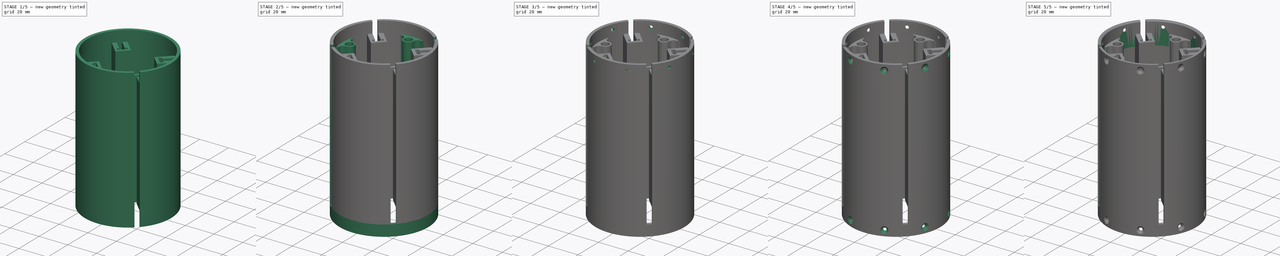
[diagram: build sequence overview — one tinted view per stage of 5, left to right]
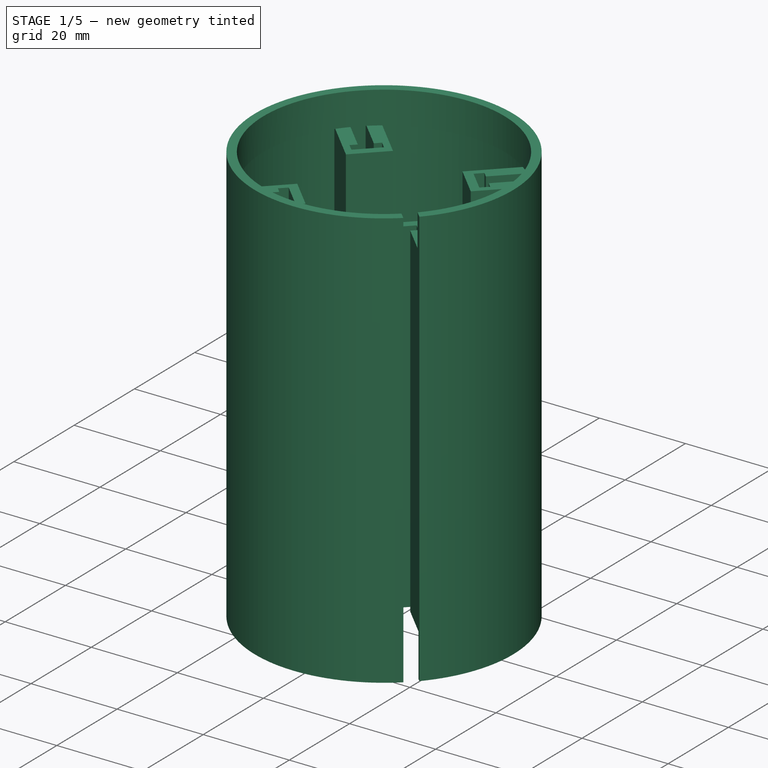
[diagram: stage 1 of 5 — iso view after this stage's code; geometry added in this stage tinted green]
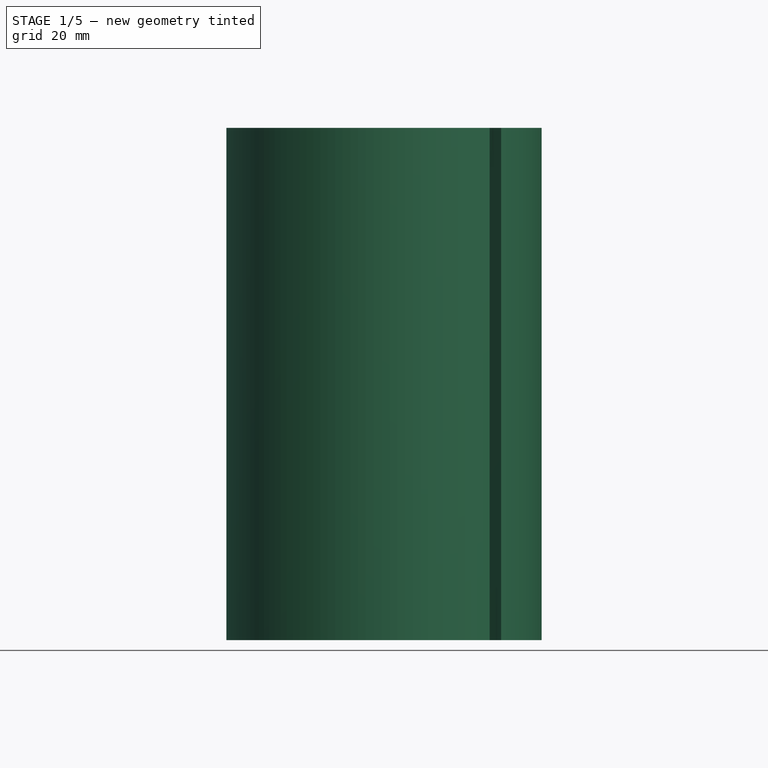
[diagram: stage 1 of 5 — front view after this stage's code; geometry added in this stage tinted green]
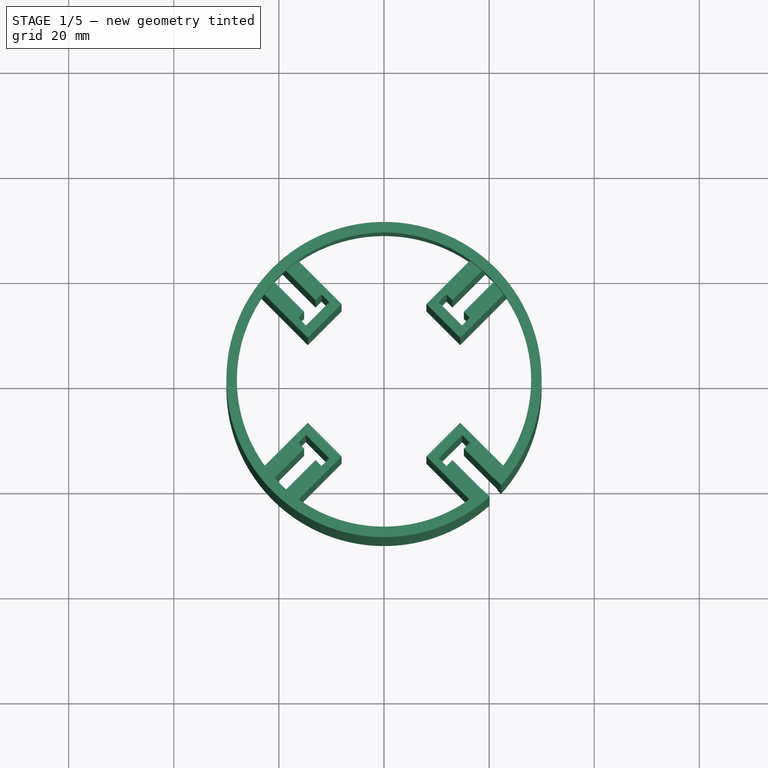
[diagram: stage 1 of 5 — top view after this stage's code; geometry added in this stage tinted green]
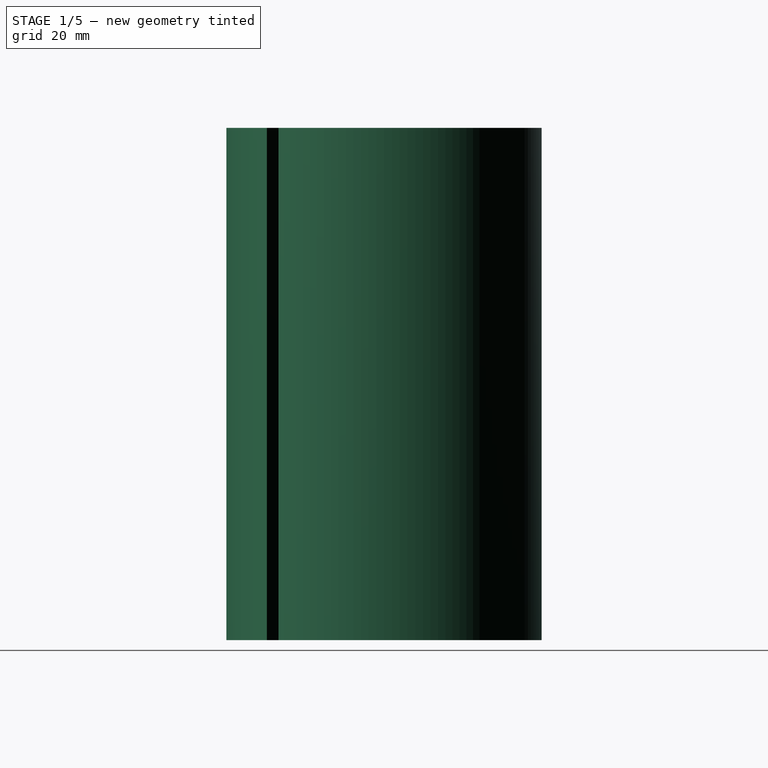
[diagram: stage 1 of 5 — right view after this stage's code; geometry added in this stage tinted green]
FCSTD DOCUMENT  (FreeCAD 1.0R39319 (Git))
Label: mid_fuselage
License: All rights reserved
objects: Sketcher::SketchObject×14, PartDesign::PolarPattern×9, PartDesign::Pad×7, PartDesign::Pocket×5, PartDesign::Plane×4, PartDesign::Chamfer×2, PartDesign::Body×1
note: 93 computed .brp shape members not serialized (recipe doc carries the construction recipe); baked Part::Feature solids carry a one-line shape summary decoded from their .brp

FEATURE [Sketcher::SketchObject] Sketch
  ArcFitTolerance = 1e-06
  AttachmentSupport = -> [XY_Plane]
  FullyConstrained = true
  MakeInternals = false
  MapMode = 5
  sketch-geometry (2):
    g0: Circle CenterX=0 CenterY=0 CenterZ=0 NormalX=0 NormalY=0 NormalZ=1 AngleXU=0 Radius=30
    g1: Circle CenterX=0 CenterY=0 CenterZ=0 NormalX=0 NormalY=0 NormalZ=1 AngleXU=0 Radius=29
  constraints (4):
    c: Diameter(g0) = 60
    c: Coincident(g0,g-1)
    c: Diameter(g1) = 58
    c: Coincident(g1,g0)
FEATURE [PartDesign::Pad] Pad  label="fusoliera"
  Direction = (0,0,1)
  Length = 90
  Length2 = 10
  Profile = -> Sketch
  ReferenceAxis = -> Sketch [N_Axis]
  Refine = true
  Suppressed = false
  Type = 0
FEATURE [Sketcher::SketchObject] Sketch002
  ArcFitTolerance = 1e-06
  AttachmentSupport = -> [Pad]
  ExternalGeometry = -> [Pad]
  FullyConstrained = true
  MakeInternals = false
  MapMode = 5
  Placement = pos=(0,0,90) rot=(0,0,1;0rad)
  sketch-geometry (13):
    g0: LineSegment [constr] StartX=0 StartY=0 StartZ=0 EndX=21.2132 EndY=21.2132 EndZ=0
    g1: LineSegment StartX=17.2594 StartY=23.6941 StartZ=0 EndX=19.3808 EndY=21.5728 EndZ=0
    g2: LineSegment StartX=23.6941 StartY=17.2594 StartZ=0 EndX=14.5017 EndY=8.06706 EndZ=0
    g3: LineSegment StartX=14.5017 StartY=8.06706 StartZ=0 EndX=8.06706 EndY=14.5017 EndZ=0
    g4: LineSegment StartX=8.06706 StartY=14.5017 StartZ=0 EndX=17.2594 EndY=23.6941 EndZ=0
    g5: LineSegment StartX=19.3808 StartY=21.5728 StartZ=0 EndX=13.0168 EndY=15.2088 EndZ=0
    g6: LineSegment StartX=13.0168 StartY=15.2088 StartZ=0 EndX=11.8854 EndY=16.3402 EndZ=0
    g7: LineSegment StartX=11.8854 StartY=16.3402 StartZ=0 EndX=10.4005 EndY=14.8553 EndZ=0
    g8: LineSegment StartX=10.4005 StartY=14.8553 StartZ=0 EndX=14.8553 EndY=10.4005 EndZ=0
    g9: LineSegment StartX=14.8553 StartY=10.4005 StartZ=0 EndX=16.3402 EndY=11.8854 EndZ=0
    g10: LineSegment StartX=16.3402 StartY=11.8854 StartZ=0 EndX=15.2088 EndY=13.0168 EndZ=0
    g11: LineSegment StartX=15.2088 StartY=13.0168 StartZ=0 EndX=21.5728 EndY=19.3808 EndZ=0
    g12: LineSegment StartX=21.5728 StartY=19.3808 StartZ=0 EndX=23.6941 EndY=17.2594 EndZ=0
  constraints (35):
    c: Coincident(g0,g-1)
    c: PointOnObject(g0,g-3)
    c: Angle(g-1,g0) = 0.785398
    c: Coincident(g2,g3)
    c: Coincident(g3,g4)
    c: Coincident(g4,g1)
    c: Parallel(g4,g0)
    c: Parallel(g4,g2)
    c: Symmetric(g1,g2,g0)
    c: Perpendicular(g2,g3)
    c: Distance(g2,g3) = 9.1
    c: Distance(g2,g2) = 13
    c: Coincident(g5,g6)
    c: Coincident(g6,g7)
    c: Coincident(g7,g8)
    c: Coincident(g8,g9)
    c: Coincident(g9,g10)
    c: Coincident(g10,g11)
    c: PointOnObject(g11,g-4)
    c: Parallel(g7,g9)
    c: Parallel(g4,g7)
    c: Parallel(g5,g0)
    c: Perpendicular(g0,g6)
    c: Symmetric(g5,g10,g0)
    c: Distance(g6,g7) = 2.1
    c: Symmetric(g6,g9,g0)
    c: Distance(g5,g6) = 1.6
    c: Perpendicular(g9,g8)
    c: Distance(g5,g11) = 3.1
    c: Distance(g10,g11) = 9
    c: Coincident(g1,g5)
    c: Coincident(g12,g11)
    c: Coincident(g12,g2)
    c: Symmetric(g11,g1,g0)
    c: Perpendicular(g1,g4)
FEATURE [PartDesign::Pad] Pad001  label="inserto_fins"
  BaseFeature = -> Pad
  Direction = (0,0,1)
  Length = 80
  Length2 = 10
  Profile = -> Sketch002
  ReferenceAxis = -> Sketch002 [N_Axis]
  Refine = true
  Reversed = true
  Suppressed = false
  Type = 0
FEATURE [Sketcher::SketchObject] Sketch003
  ArcFitTolerance = 1e-06
  AttachmentSupport = -> [Pad001]
  FullyConstrained = true
  MakeInternals = false
  MapMode = 5
  Placement = pos=(0,0,90) rot=(0,0,1;0rad)
  sketch-geometry (2):
    g0: Circle CenterX=0 CenterY=0 CenterZ=0 NormalX=0 NormalY=0 NormalZ=1 AngleXU=0 Radius=28
    g1: Circle CenterX=0 CenterY=0 CenterZ=0 NormalX=0 NormalY=0 NormalZ=1 AngleXU=0 Radius=30
  constraints (4):
    c: Diameter(g0) = 56
    c: Coincident(g0,g-1)
    c: Diameter(g1) = 60
    c: Coincident(g1,g0)
FEATURE [PartDesign::Pad] Pad002  label="rinforzo_inf"
  BaseFeature = -> Pad001
  Direction = (0,0,1)
  Length = 7.5
  Length2 = 10
  Profile = -> Sketch003
  ReferenceAxis = -> Sketch003 [N_Axis]
  Refine = true
  Suppressed = false
  Type = 0
FEATURE [PartDesign::PolarPattern] PolarPattern
  Angle = 360
  Axis = -> Sketch002 [N_Axis]
  BaseFeature = -> Pad002
  Mode = 0
  Occurrences = 4
  Offset = 120
  Originals = -> [Pad001]
  Refine = true
  Suppressed = false
  TransformMode = 0
FEATURE [Sketcher::SketchObject] Sketch005
  ArcFitTolerance = 1e-06
  AttachmentSupport = -> [PolarPattern]
  FullyConstrained = false
  MakeInternals = false
  MapMode = 5
  Placement = pos=(0,0,0) rot=(1,0,0;3.14159rad)
  sketch-geometry (10):
    g0: Circle CenterX=0 CenterY=23.4279 CenterZ=0 NormalX=0 NormalY=0 NormalZ=1 AngleXU=0 Radius=2.575
    g1: ArcOfCircle CenterX=0 CenterY=23.4279 CenterZ=0 NormalX=0 NormalY=0 NormalZ=1 AngleXU=0 Radius=3.5 StartAngle=3.14159 EndAngle=6.28319
    g2: ArcOfCircle CenterX=-6.25219 CenterY=23.4279 CenterZ=0 NormalX=0 NormalY=0 NormalZ=1 AngleXU=0 Radius=2.75219 StartAngle=0 EndAngle=1.83159
    g3: ArcOfCircle CenterX=6.25219 CenterY=23.4279 CenterZ=0 NormalX=0 NormalY=0 NormalZ=1 AngleXU=0 Radius=2.75219 StartAngle=1.31 EndAngle=3.14159
    g4: LineSegment [constr] StartX=0 StartY=23.4279 StartZ=0 EndX=-7.45629 EndY=23.4279 EndZ=0
    g5: LineSegment [constr] StartX=0 StartY=23.4279 StartZ=0 EndX=7.33716 EndY=23.4279 EndZ=0
    g6: LineSegment StartX=-6.96183 StartY=26.087 StartZ=0 EndX=-7.63779 EndY=28.6199 EndZ=0
    g7: LineSegment StartX=7.63001 StartY=28.5908 StartZ=0 EndX=6.96183 EndY=26.087 EndZ=0
    g8: LineSegment StartX=-7.63779 StartY=28.6199 StartZ=0 EndX=-1e-16 EndY=29.5069 EndZ=0
    g9: LineSegment StartX=-1e-16 StartY=29.5069 StartZ=0 EndX=7.63001 EndY=28.5908 EndZ=0
  constraints (23):
    c: Diameter(g0) = 5.15
    c: PointOnObject(g0,g-2)
    c: Diameter(g1) = 7
    c: Coincident(g1,g0)
    c: DistanceY(g-1,g0) = 23.4279
    c: Tangent(g2,g-3)
    c: Coincident(g4,g0)
    c: Horizontal(g4)
    c: Perpendicular(g2,g4)
    c: Coincident(g5,g0)
    c: Horizontal(g5)
    c: Perpendicular(g3,g5)
    c: Perpendicular(g3,g7)
    c: Perpendicular(g2,g6) = 4.71239
    c: Tangent(g2,g1) = 1.5708
    c: Tangent(g3,g1) = 1.5708
    c: Tangent(g3,g-3) = -1.5708
    c: Coincident(g3,g7)
    c: Perpendicular(g-3,g6)
    c: Coincident(g6,g8)
    c: PointOnObject(g8,g-2)
    c: Coincident(g8,g9)
    c: Coincident(g9,g7)
FEATURE [Sketcher::SketchObject] Sketch006
  ArcFitTolerance = 1e-06
  AttachmentSupport = -> [PolarPattern]
  ExternalGeometry = -> [PolarPattern]
  FullyConstrained = false
  MakeInternals = false
  MapMode = 5
  Placement = pos=(0,0,0) rot=(1,0,0;3.14159rad)
  sketch-geometry (5):
    g0: LineSegment [constr] StartX=0 StartY=0 StartZ=0 EndX=21.2132 EndY=21.2132 EndZ=0
    g1: LineSegment StartX=18.2749 StartY=20.4669 StartZ=0 EndX=20.6047 EndY=22.7967 EndZ=0
    g2: LineSegment StartX=20.6047 StartY=22.7967 StartZ=0 EndX=22.7967 EndY=20.6047 EndZ=0
    g3: LineSegment StartX=18.2749 StartY=20.4669 StartZ=0 EndX=20.4669 EndY=18.2749 EndZ=0
    g4: LineSegment StartX=20.4669 StartY=18.2749 StartZ=0 EndX=22.7967 EndY=20.6047 EndZ=0
  constraints (13):
    c: Coincident(g0,g-1)
    c: PointOnObject(g0,g-3)
    c: Angle(g-1,g0) = 0.785398
    c: PointOnObject(g1,g-4)
    c: Coincident(g1,g2)
    c: Coincident(g1,g3)
    c: PointOnObject(g3,g-8)
    c: Coincident(g3,g4)
    c: Coincident(g4,g2)
    c: Parallel(g-4,g1)
    c: Parallel(g4,g-8)
    c: Perpendicular(g2,g1)
    c: Perpendicular(g4,g3)
FEATURE [PartDesign::Pocket] Pocket  label="inserto_fins_2"
  BaseFeature = -> PolarPattern
  Direction = (0,0,1)
  Length = 97.5
  Length2 = 5
  Profile = -> Sketch006
  ReferenceAxis = -> Sketch006 [N_Axis]
  Refine = true
  Suppressed = false
  Type = 0
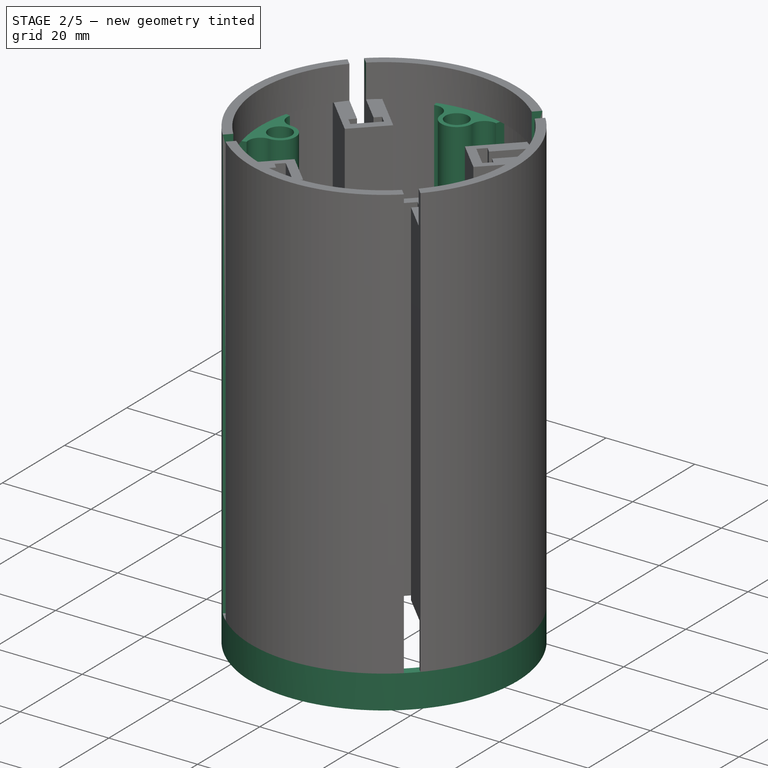
[diagram: stage 2 of 5 — iso view after this stage's code; geometry added in this stage tinted green]
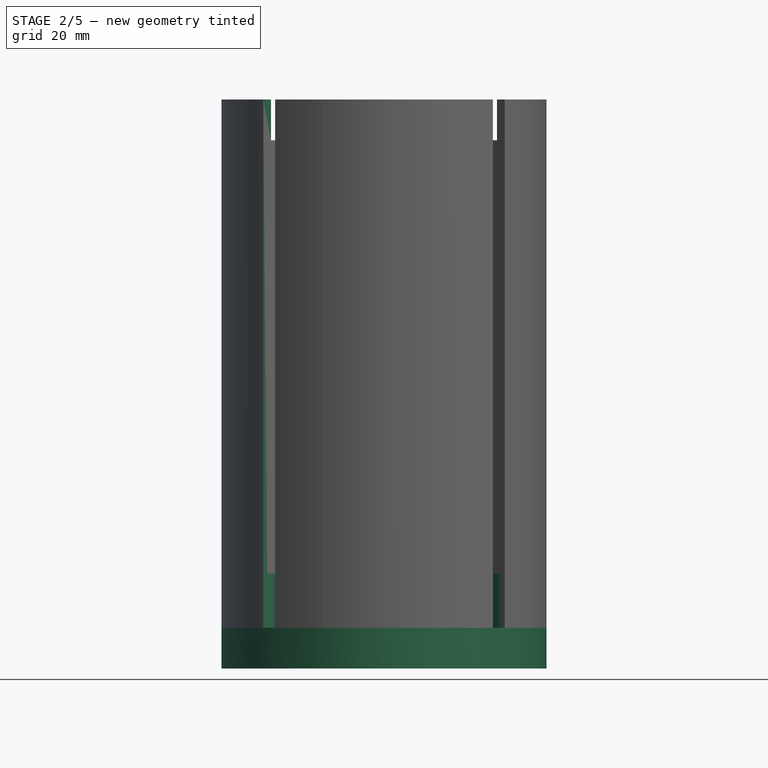
[diagram: stage 2 of 5 — front view after this stage's code; geometry added in this stage tinted green]
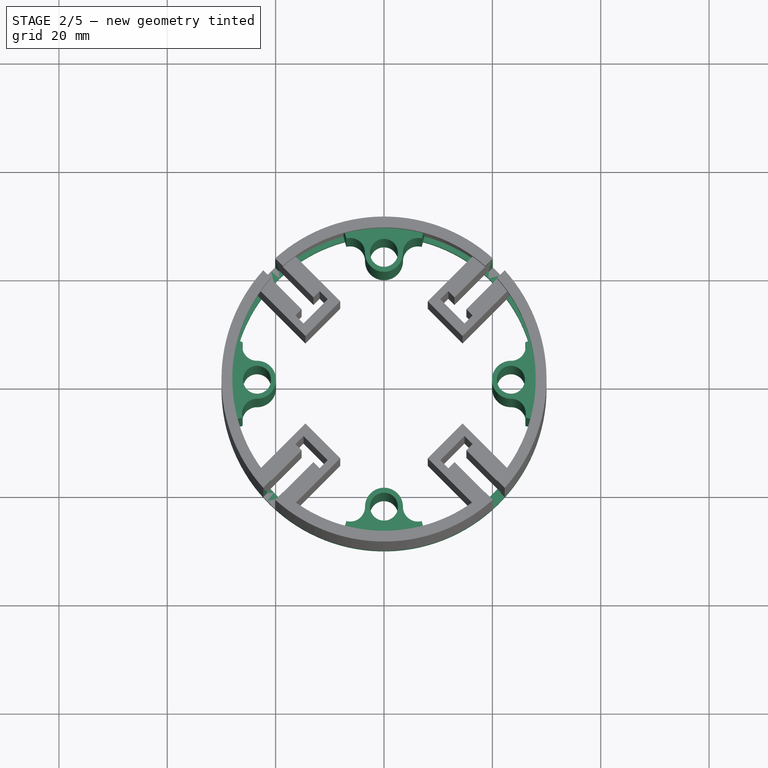
[diagram: stage 2 of 5 — top view after this stage's code; geometry added in this stage tinted green]
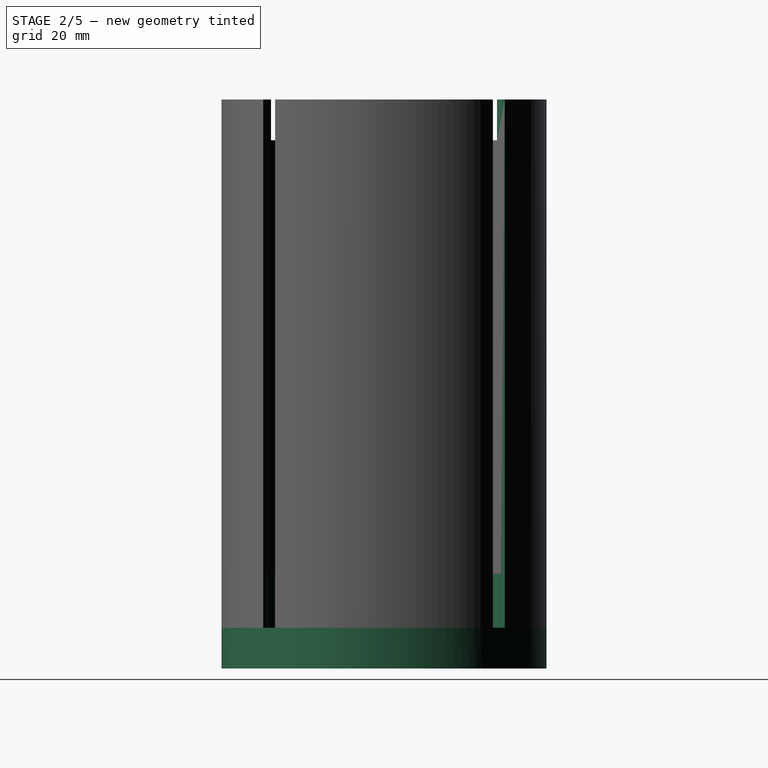
[diagram: stage 2 of 5 — right view after this stage's code; geometry added in this stage tinted green]
FEATURE [PartDesign::PolarPattern] PolarPattern001
  Angle = 360
  Axis = -> Sketch006 [N_Axis]
  BaseFeature = -> Pocket
  Mode = 0
  Occurrences = 4
  Offset = 120
  Originals = -> [Pocket]
  Refine = true
  Suppressed = false
  TransformMode = 0
FEATURE [PartDesign::Pad] Pad003  label="inserto_tondo"
  BaseFeature = -> PolarPattern001
  Direction = (0,0,-1)
  Length = 90
  Length2 = 10
  Profile = -> Sketch005
  ReferenceAxis = -> Sketch005 [N_Axis]
  Refine = true
  Reversed = true
  Suppressed = false
  Type = 0
FEATURE [PartDesign::PolarPattern] PolarPattern002
  Angle = 360
  Axis = -> Sketch005 [N_Axis]
  BaseFeature = -> Pad003
  Mode = 0
  Occurrences = 4
  Offset = 120
  Originals = -> [Pad003]
  Refine = true
  Suppressed = false
  TransformMode = 0
FEATURE [Sketcher::SketchObject] Sketch007
  ArcFitTolerance = 1e-06
  AttachmentSupport = -> [PolarPattern002]
  ExternalGeometry = -> [PolarPattern002]
  FullyConstrained = true
  MakeInternals = false
  MapMode = 5
  Placement = pos=(0,0,0) rot=(1,0,0;3.14159rad)
  sketch-geometry (2):
    g0: Circle CenterX=0 CenterY=0 CenterZ=0 NormalX=0 NormalY=0 NormalZ=1 AngleXU=0 Radius=28
    g1: Circle CenterX=0 CenterY=0 CenterZ=0 NormalX=0 NormalY=0 NormalZ=1 AngleXU=0 Radius=30
  constraints (4):
    c: Coincident(g0,g-1)
    c: Diameter(g0) = 56
    c: Coincident(g1,g0)
    c: Tangent(g1,g-3)
FEATURE [PartDesign::Pad] Pad004  label="rinforzo_sup"
  BaseFeature = -> PolarPattern002
  Direction = (0,0,-1)
  Length = 7.5
  Length2 = 10
  Profile = -> Sketch007
  ReferenceAxis = -> Sketch007 [N_Axis]
  Refine = true
  Suppressed = false
  Type = 0
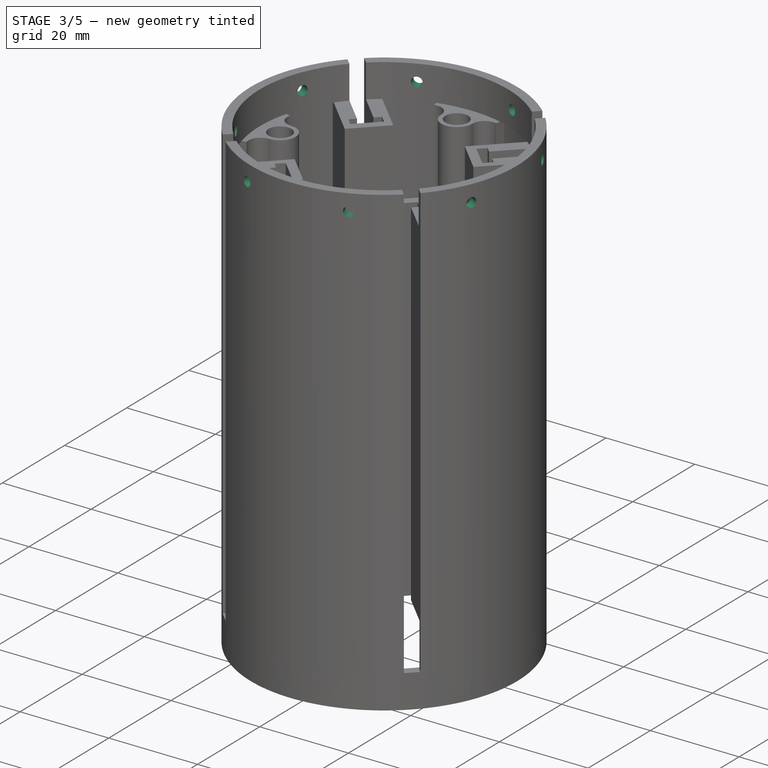
[diagram: stage 3 of 5 — iso view after this stage's code; geometry added in this stage tinted green]
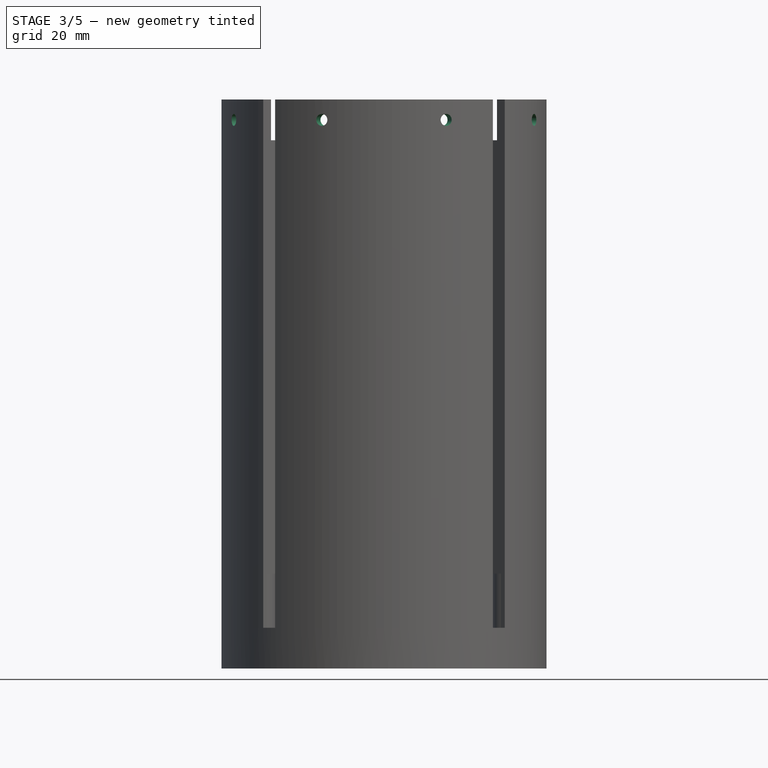
[diagram: stage 3 of 5 — front view after this stage's code; geometry added in this stage tinted green]
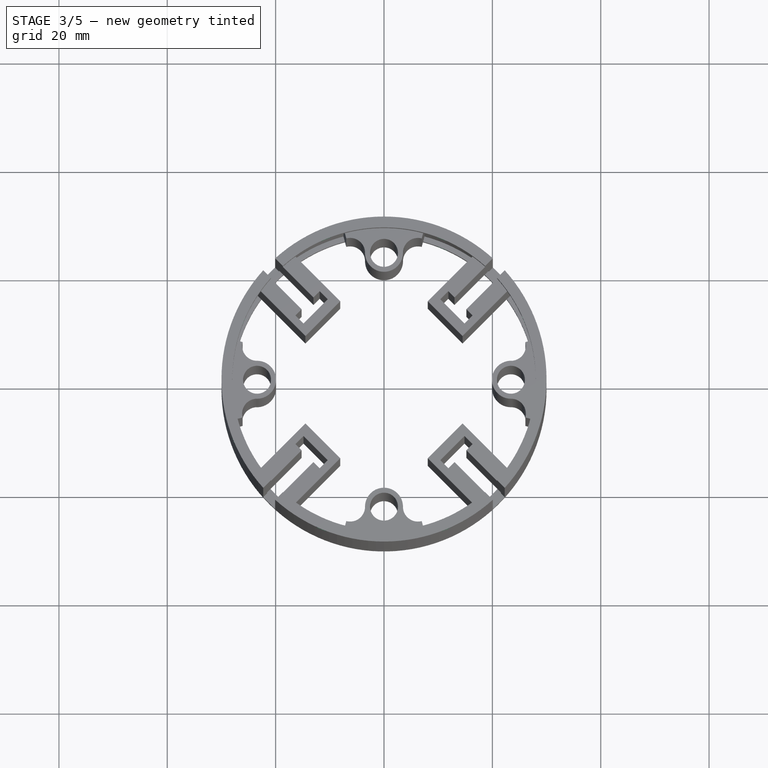
[diagram: stage 3 of 5 — top view after this stage's code; geometry added in this stage tinted green]
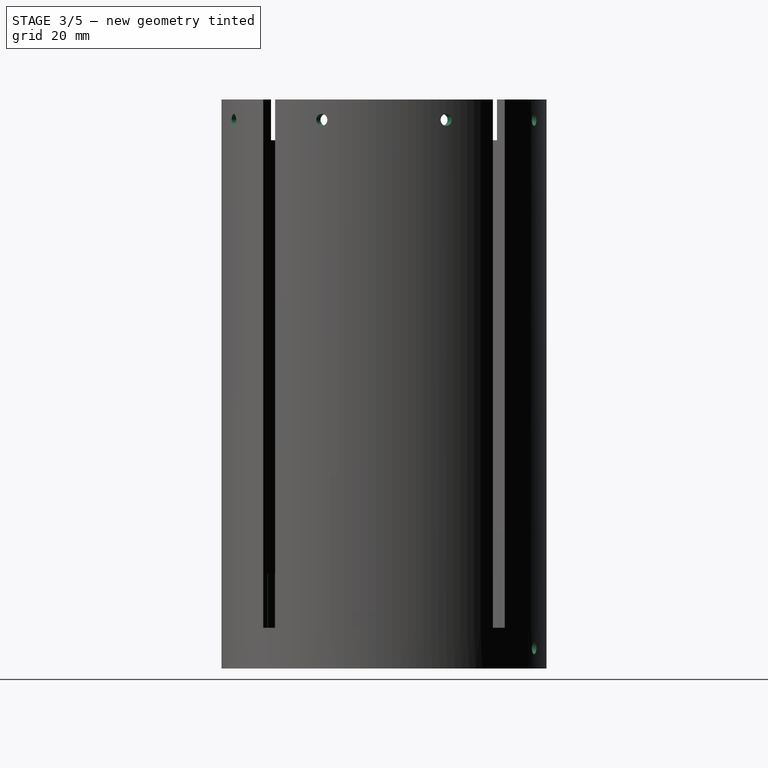
[diagram: stage 3 of 5 — right view after this stage's code; geometry added in this stage tinted green]
FEATURE [Sketcher::SketchObject] Sketch008
  ArcFitTolerance = 1e-06
  AttachmentSupport = -> [Pad004]
  ExternalGeometry = -> [Pad004]
  FullyConstrained = true
  MakeInternals = false
  MapMode = 5
  Placement = pos=(0,0,97.5) rot=(0,0,1;0rad)
  sketch-geometry (3):
    g0: LineSegment [constr] StartX=0 StartY=0 StartZ=0 EndX=21.2132 EndY=21.2132 EndZ=0
    g1: LineSegment StartX=0 StartY=0 StartZ=0 EndX=11.4805 EndY=27.7164 EndZ=0
    g2: LineSegment StartX=0 StartY=0 StartZ=0 EndX=27.7164 EndY=11.4805 EndZ=0
  constraints (9):
    c: Coincident(g0,g-1)
    c: PointOnObject(g0,g-3)
    c: Coincident(g1,g0)
    c: PointOnObject(g1,g-3)
    c: Coincident(g2,g0)
    c: PointOnObject(g2,g-3)
    c: Angle(g-1,g0) = 0.785398
    c: Angle(g2,g1) = 0.785398
    c: Angle(g0,g1) = 0.392699
FEATURE [PartDesign::Plane] DatumPlane
  AttachmentSupport = -> [Sketch008]
  Length = 97.784
  MapMode = 7
  Placement = pos=(11.4805,27.7164,97.5) rot=(0.962637,-0.19148,-0.19148;1.60887rad)
  ResizeMode = 0
  Width = 142.076
FEATURE [PartDesign::Plane] DatumPlane001
  AttachmentSupport = -> [Sketch008]
  Length = 97.8306
  MapMode = 7
  Placement = pos=(27.7164,11.4805,97.5) rot=(0.726831,-0.485653,-0.485653;1.88458rad)
  ResizeMode = 0
  Width = 142.081
FEATURE [Sketcher::SketchObject] Sketch009
  ArcFitTolerance = 1e-06
  AttachmentSupport = -> [DatumPlane]
  FullyConstrained = true
  MakeInternals = false
  MapMode = 5
  Placement = pos=(11.4805,27.7164,97.5) rot=(0.962637,-0.19148,-0.19148;1.60887rad)
  sketch-geometry (1):
    g0: Circle CenterX=0 CenterY=-3.75 CenterZ=0 NormalX=0 NormalY=0 NormalZ=1 AngleXU=0 Radius=1.1
  constraints (3):
    c: Diameter(g0) = 2.2
    c: PointOnObject(g0,g-2)
    c: DistanceY(g0,g-1) = 3.75
FEATURE [Sketcher::SketchObject] Sketch010
  ArcFitTolerance = 1e-06
  AttachmentSupport = -> [DatumPlane001]
  FullyConstrained = true
  MakeInternals = false
  MapMode = 5
  Placement = pos=(27.7164,11.4805,97.5) rot=(0.726831,-0.485653,-0.485653;1.88458rad)
  sketch-geometry (1):
    g0: Circle CenterX=0 CenterY=-3.75 CenterZ=0 NormalX=0 NormalY=0 NormalZ=1 AngleXU=0 Radius=1.1
  constraints (3):
    c: Diameter(g0) = 2.2
    c: PointOnObject(g0,g-2)
    c: DistanceY(g0,g-1) = 3.75
FEATURE [PartDesign::Pocket] Pocket001  label="sede_viti_inf_1"
  BaseFeature = -> Pad004
  Direction = (0.382683,0.92388,0)
  Length = 3
  Length2 = 5
  Profile = -> Sketch009
  ReferenceAxis = -> Sketch009 [N_Axis]
  Refine = true
  Reversed = true
  Suppressed = false
  Type = 0
FEATURE [PartDesign::Pocket] Pocket002  label="sede_viti_inf_2"
  BaseFeature = -> Pocket001
  Direction = (0.92388,0.382683,0)
  Length = 3
  Length2 = 5
  Profile = -> Sketch010
  ReferenceAxis = -> Sketch010 [N_Axis]
  Refine = true
  Reversed = true
  Suppressed = false
  Type = 0
FEATURE [PartDesign::PolarPattern] PolarPattern003
  Angle = 360
  Axis = -> Z_Axis
  BaseFeature = -> Pocket002
  Mode = 0
  Occurrences = 4
  Offset = 120
  Originals = -> [Pocket001]
  Refine = true
  Suppressed = false
  TransformMode = 0
FEATURE [PartDesign::PolarPattern] PolarPattern004
  Angle = 360
  Axis = -> Z_Axis
  BaseFeature = -> PolarPattern003
  Mode = 0
  Occurrences = 4
  Offset = 120
  Originals = -> [Pocket002]
  Refine = true
  Suppressed = false
  TransformMode = 0
FEATURE [Sketcher::SketchObject] Sketch011
  ArcFitTolerance = 1e-06
  AttachmentSupport = -> [PolarPattern004]
  ExternalGeometry = -> [Sketch008]
  FullyConstrained = true
  MakeInternals = false
  MapMode = 5
  Placement = pos=(0,0,-7.5) rot=(1,0,0;3.14159rad)
  sketch-geometry (2):
    g0: LineSegment StartX=11.4805 StartY=-27.7164 StartZ=0 EndX=6e-16 EndY=-1e-15 EndZ=0
    g1: LineSegment StartX=6e-16 StartY=-1e-15 StartZ=0 EndX=27.7164 EndY=-11.4805 EndZ=0
  constraints (4):
    c: Coincident(g0,g-4)
    c: Coincident(g0,g-1)
    c: Coincident(g1,g0)
    c: Coincident(g1,g-3)
FEATURE [PartDesign::Plane] DatumPlane002
  AttachmentSupport = -> [Sketch011]
  Length = 97.784
  MapMode = 7
  Placement = pos=(11.4805,27.7164,-7.5) rot=(0.139281,0.700215,0.700215;2.86481rad)
  ResizeMode = 0
  Width = 142.076
FEATURE [PartDesign::Plane] DatumPlane003
  AttachmentSupport = -> [Sketch011]
  Length = 97.8306
  MapMode = 7
  Placement = pos=(27.7164,11.4805,-7.5) rot=(0.726831,-0.485653,-0.485653;1.88458rad)
  ResizeMode = 0
  Width = 142.081
FEATURE [Sketcher::SketchObject] Sketch012
  ArcFitTolerance = 1e-06
  AttachmentSupport = -> [DatumPlane002]
  FullyConstrained = false
  MakeInternals = false
  MapMode = 5
  Placement = pos=(11.4805,27.7164,-7.5) rot=(0.139281,0.700215,0.700215;2.86481rad)
  sketch-geometry (1):
    g0: Circle CenterX=0 CenterY=3.75 CenterZ=0 NormalX=0 NormalY=0 NormalZ=1 AngleXU=0 Radius=1.1
  constraints (2):
    c: Diameter(g0) = 2.2
    c: DistanceY(g-1,g0) = 3.75
FEATURE [Sketcher::SketchObject] Sketch013
  ArcFitTolerance = 1e-06
  AttachmentSupport = -> [DatumPlane003]
  FullyConstrained = true
  MakeInternals = false
  MapMode = 5
  Placement = pos=(27.7164,11.4805,-7.5) rot=(0.726831,-0.485653,-0.485653;1.88458rad)
  sketch-geometry (1):
    g0: Circle CenterX=0 CenterY=3.75 CenterZ=0 NormalX=0 NormalY=0 NormalZ=1 AngleXU=0 Radius=1.1
  constraints (3):
    c: Diameter(g0) = 2.2
    c: PointOnObject(g0,g-2)
    c: DistanceY(g-1,g0) = 3.75
FEATURE [PartDesign::Pocket] Pocket003  label="sede_viti_sup_1"
  BaseFeature = -> PolarPattern004
  Direction = (-0.382683,-0.92388,2e-16)
  Length = 3
  Length2 = 5
  Profile = -> Sketch012
  ReferenceAxis = -> Sketch012 [N_Axis]
  Refine = true
  Suppressed = false
  Type = 0
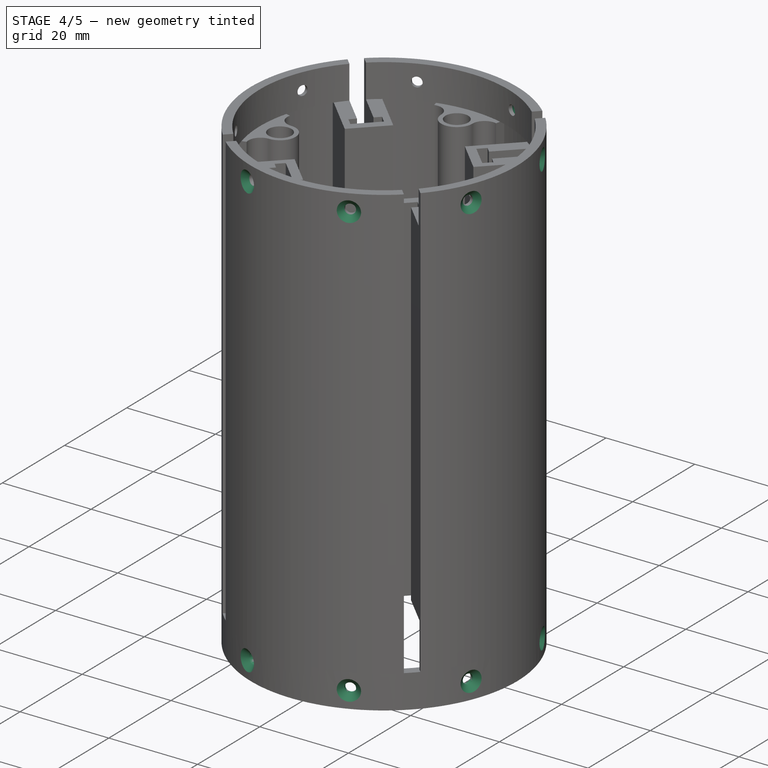
[diagram: stage 4 of 5 — iso view after this stage's code; geometry added in this stage tinted green]
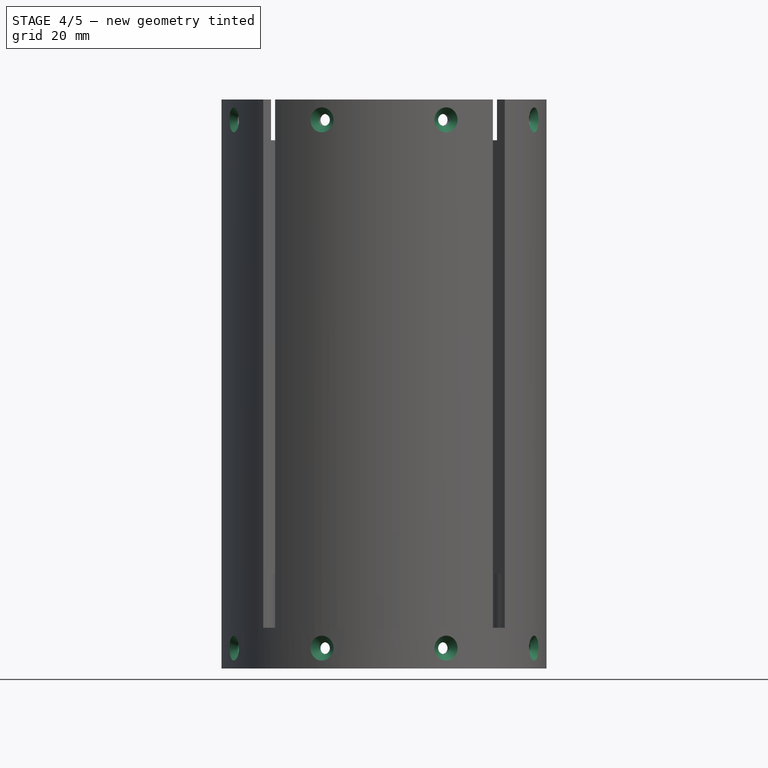
[diagram: stage 4 of 5 — front view after this stage's code; geometry added in this stage tinted green]
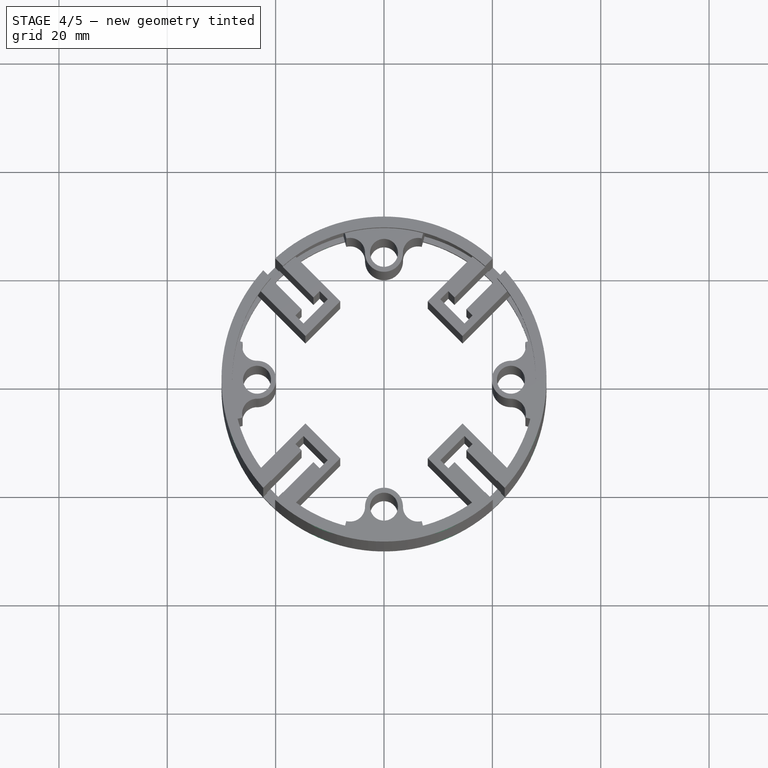
[diagram: stage 4 of 5 — top view after this stage's code; geometry added in this stage tinted green]
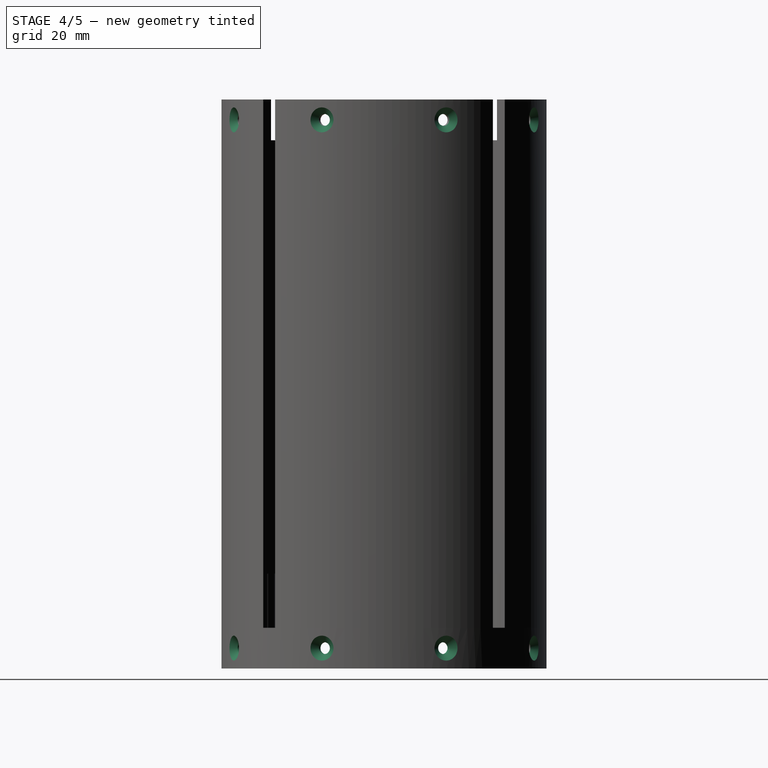
[diagram: stage 4 of 5 — right view after this stage's code; geometry added in this stage tinted green]
FEATURE [PartDesign::Pocket] Pocket004  label="sede_viti_sup_2"
  BaseFeature = -> Pocket003
  Direction = (0.92388,0.382683,0)
  Length = 3
  Length2 = 5
  Profile = -> Sketch013
  ReferenceAxis = -> Sketch013 [N_Axis]
  Refine = true
  Reversed = true
  Suppressed = false
  Type = 0
FEATURE [PartDesign::PolarPattern] PolarPattern005
  Angle = 360
  Axis = -> Z_Axis
  BaseFeature = -> Pocket004
  Mode = 0
  Occurrences = 4
  Offset = 120
  Originals = -> [Pocket003]
  Refine = true
  Suppressed = false
  TransformMode = 0
FEATURE [PartDesign::PolarPattern] PolarPattern006
  Angle = 360
  Axis = -> Z_Axis
  BaseFeature = -> PolarPattern005
  Mode = 0
  Occurrences = 4
  Offset = 120
  Originals = -> [Pocket004]
  Refine = true
  Suppressed = false
  TransformMode = 0
FEATURE [PartDesign::Chamfer] Chamfer
  Angle = 45
  Base = -> PolarPattern006 [Edge98,Edge99,Edge93,Edge94,Edge95,Edge92,Edge96,Edge97,Edge193,Edge195,Edge194,Edge216,Edge215,Edge217,Edge220,Edge218,Edge219,Edge207,Edge208,Edge206,Edge211,Edge209,Edge210,Edge123,Edge121,Edge122,Edge125,Edge124,Edge126,Edge191,Edge190,Edge192]
  BaseFeature = -> PolarPattern006
  ChamferType = 0
  FlipDirection = false
  Refine = true
  Size = 1.2
  Size2 = 1
  SupportTransform = false
  Suppressed = false
  UseAllEdges = false
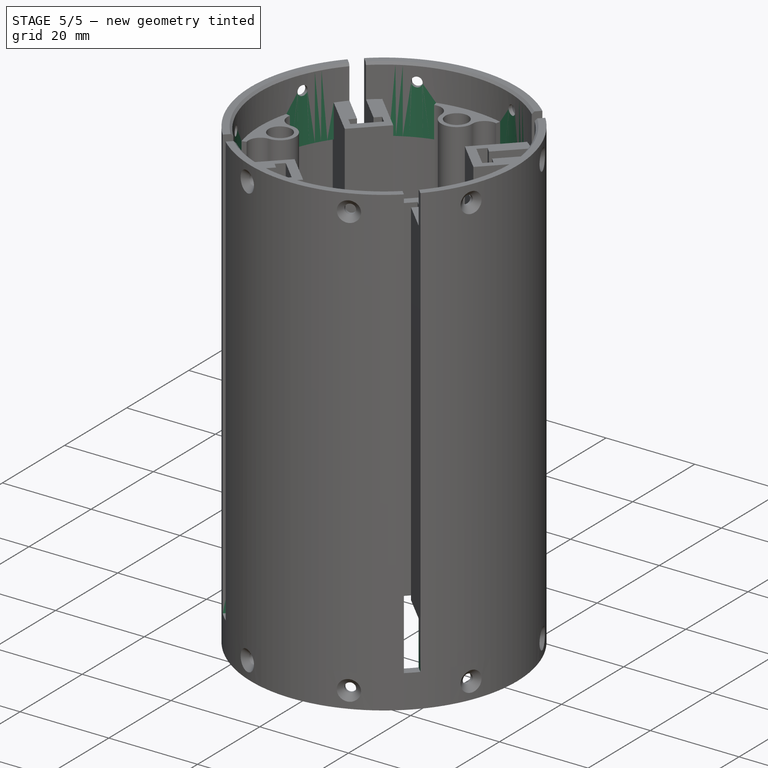
[diagram: stage 5 of 5 — iso view after this stage's code; geometry added in this stage tinted green]
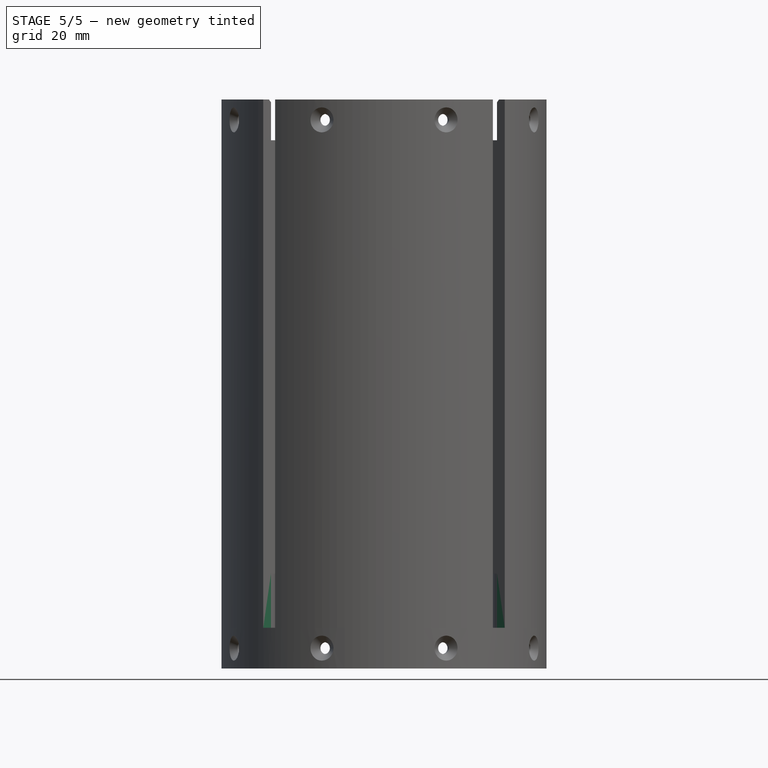
[diagram: stage 5 of 5 — front view after this stage's code; geometry added in this stage tinted green]
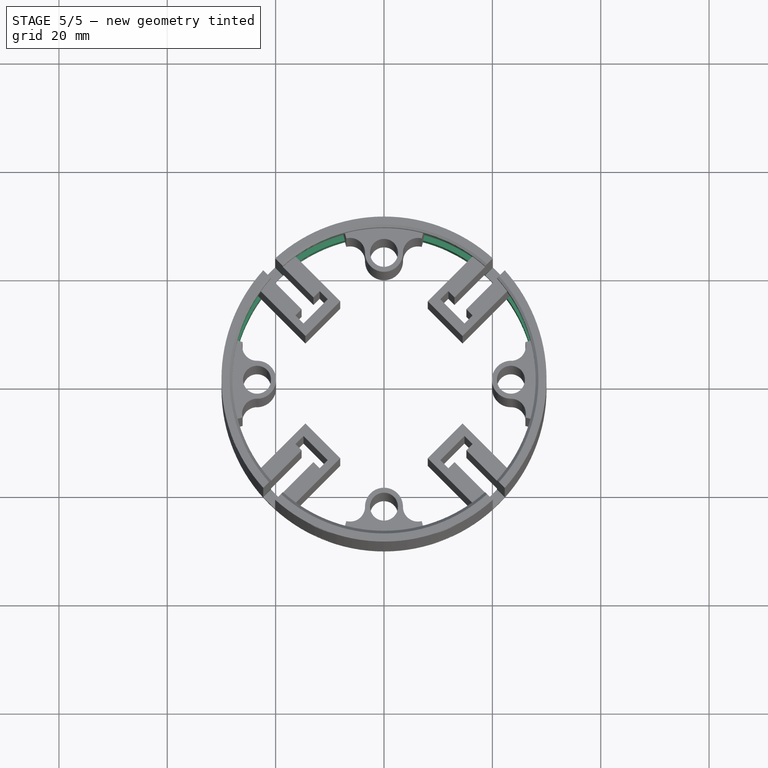
[diagram: stage 5 of 5 — top view after this stage's code; geometry added in this stage tinted green]
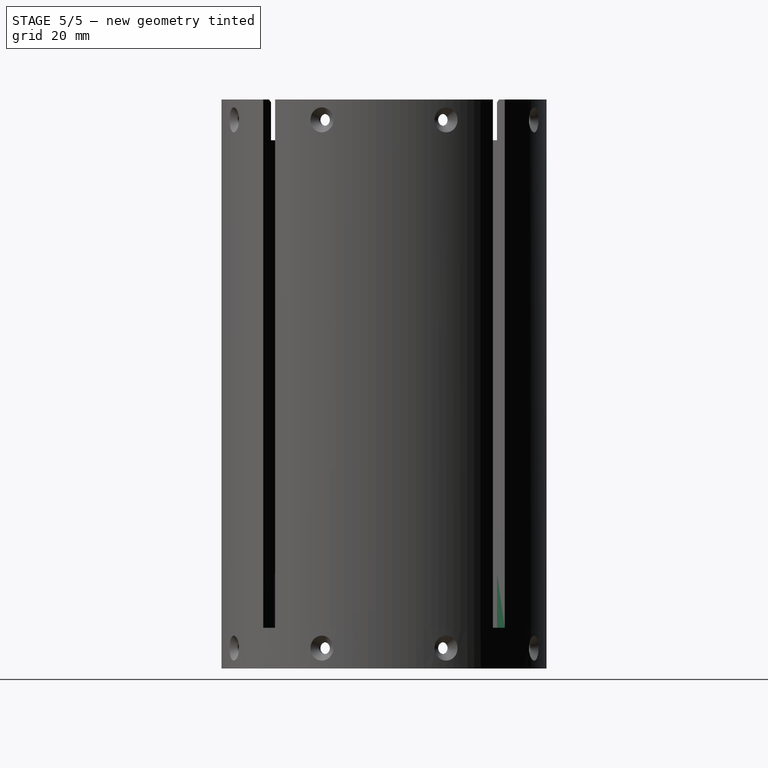
[diagram: stage 5 of 5 — right view after this stage's code; geometry added in this stage tinted green]
FEATURE [PartDesign::Chamfer] Chamfer001
  Angle = 45
  Base = -> Chamfer [Edge198,Edge231,Edge165,Edge132,Edge230]
  BaseFeature = -> Chamfer
  ChamferType = 0
  FlipDirection = false
  Refine = true
  Size = 0.5
  Size2 = 1
  SupportTransform = false
  Suppressed = false
  UseAllEdges = false
FEATURE [Sketcher::SketchObject] Sketch014
  ArcFitTolerance = 1e-06
  AttachmentSupport = -> [Chamfer001]
  ExternalGeometry = -> [Chamfer001]
  FullyConstrained = true
  MakeInternals = false
  MapMode = 5
  Placement = pos=(0,0,90) rot=(0,0,1;0rad)
  sketch-geometry (4):
    g0: ArcOfCircle CenterX=0 CenterY=0 CenterZ=0 NormalX=0 NormalY=0 NormalZ=1 AngleXU=0 Radius=30 StartAngle=0.937652 EndAngle=2.20394
    g1: ArcOfCircle CenterX=0 CenterY=0 CenterZ=0 NormalX=0 NormalY=0 NormalZ=1 AngleXU=0 Radius=28 StartAngle=0.948622 EndAngle=2.19297
    g2: LineSegment StartX=-16.3185 StartY=22.7532 StartZ=0 EndX=-17.7505 EndY=24.1851 EndZ=0
    g3: LineSegment StartX=16.3185 StartY=22.7532 StartZ=0 EndX=17.7505 EndY=24.1851 EndZ=0
  constraints (11):
    c: Diameter(g0) = 60
    c: Coincident(g0,g-1)
    c: Coincident(g1,g0)
    c: Parallel(g-4,g3)
    c: PointOnObject(g3,g-4)
    c: Coincident(g0,g2)
    c: Coincident(g0,g3)
    c: Coincident(g1,g2)
    c: Coincident(g1,g3)
    c: Coincident(g1,g-5)
    c: Parallel(g-5,g2)
FEATURE [PartDesign::Pad] Pad005
  BaseFeature = -> Chamfer001
  Direction = (0,0,1)
  Length = 7.5
  Length2 = 10
  Profile = -> Sketch014
  ReferenceAxis = -> Sketch014 [N_Axis]
  Refine = true
  Reversed = true
  Suppressed = false
  Type = 0
FEATURE [PartDesign::PolarPattern] PolarPattern007
  Angle = 360
  Axis = -> Z_Axis
  BaseFeature = -> Pad005
  Mode = 0
  Occurrences = 4
  Offset = 120
  Refine = true
  Suppressed = false
  TransformMode = 1
FEATURE [Sketcher::SketchObject] Sketch015
  ArcFitTolerance = 1e-06
  AttachmentSupport = -> [PolarPattern007]
  ExternalGeometry = -> [PolarPattern007]
  FullyConstrained = false
  MakeInternals = false
  MapMode = 5
  Placement = pos=(0,0,0) rot=(1,0,0;3.14159rad)
  sketch-geometry (5):
    g0: ArcOfCircle CenterX=0 CenterY=0 CenterZ=0 NormalX=0 NormalY=0 NormalZ=1 AngleXU=0 Radius=30 StartAngle=0.837088 EndAngle=2.3045
    g1: ArcOfCircle CenterX=0 CenterY=0 CenterZ=0 NormalX=0 NormalY=0 NormalZ=1 AngleXU=0 Radius=28 StartAngle=0.840784 EndAngle=2.30081
    g2: LineSegment StartX=18.6726 StartY=20.8646 StartZ=0 EndX=20.0889 EndY=22.2809 EndZ=0
    g3: LineSegment [constr] StartX=19.3808 StartY=21.5728 StartZ=0 EndX=22.8914 EndY=25.0834 EndZ=0
    g4: LineSegment StartX=-18.6726 StartY=20.8646 StartZ=0 EndX=-20.0889 EndY=22.2809 EndZ=0
  constraints (14):
    c: Diameter(g0) = 60
    c: Coincident(g0,g-1)
    c: Coincident(g1,g0)
    c: PointOnObject(g1,g-6)
    c: Coincident(g2,g1)
    c: Coincident(g2,g0)
    c: Coincident(g3,g-6)
    c: Parallel(g3,g-6)
    c: PointOnObject(g0,g3)
    c: PointOnObject(g1,g-7)
    c: PointOnObject(g1,g-5)
    c: Coincident(g4,g1)
    c: Coincident(g4,g0)
    c: Parallel(g-5,g4)
FEATURE [PartDesign::Pad] Pad006
  BaseFeature = -> PolarPattern007
  Direction = (0,0,-1)
  Length = 12.5
  Length2 = 10
  Profile = -> Sketch015
  ReferenceAxis = -> Sketch015 [N_Axis]
  Refine = true
  Reversed = true
  Suppressed = false
  Type = 0
FEATURE [PartDesign::PolarPattern] PolarPattern008
  Angle = 360
  Axis = -> Z_Axis
  BaseFeature = -> Pad006
  Mode = 0
  Occurrences = 4
  Offset = 120
  Originals = -> [Pad006]
  Refine = true
  Suppressed = false
  TransformMode = 0
FEATURE [PartDesign::Body] Body
  AllowCompound = false
  Group = -> [Sketch,Pad,Sketch002,Pad001,Sketch003,Pad002,PolarPattern,Sketch005,Sketch006,Pocket,PolarPattern001,Pad003,PolarPattern002,Sketch007,Pad004,Sketch008,DatumPlane,DatumPlane001,Sketch009,Sketch010,Pocket001,Pocket002,PolarPattern003,PolarPattern004,Sketch011,DatumPlane002,DatumPlane003,Sketch012,Sketch013,Pocket003,Pocket004,PolarPattern005,PolarPattern006,Chamfer,Chamfer001,Sketch014,Pad005,+4 more]
  Origin = -> Origin
  Tip = -> PolarPattern008
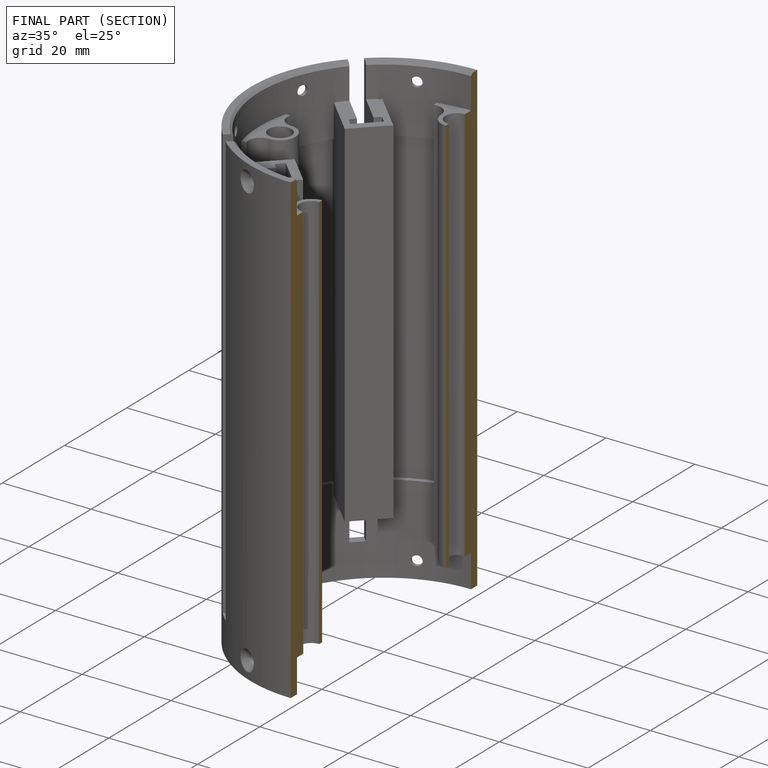
[diagram: finished part — half-section view (interior)]
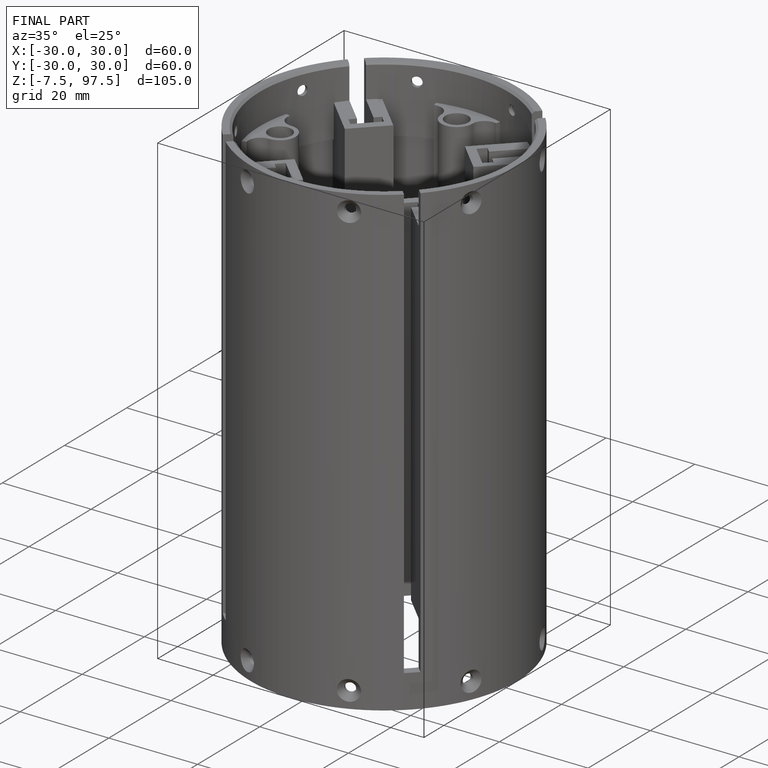
[diagram: finished part — iso view with bounding-box wireframe]
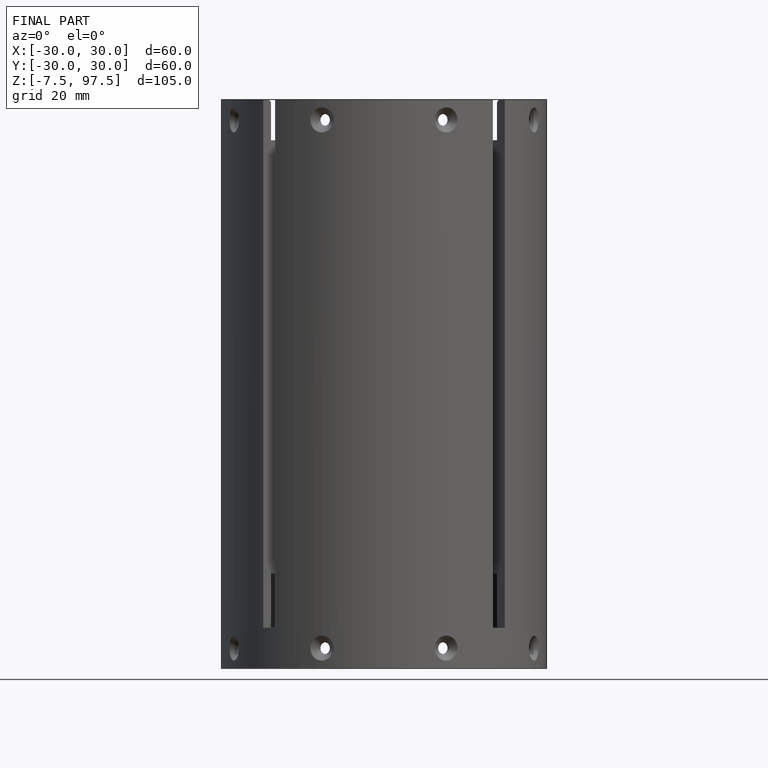
[diagram: finished part — front view with bounding-box wireframe]
